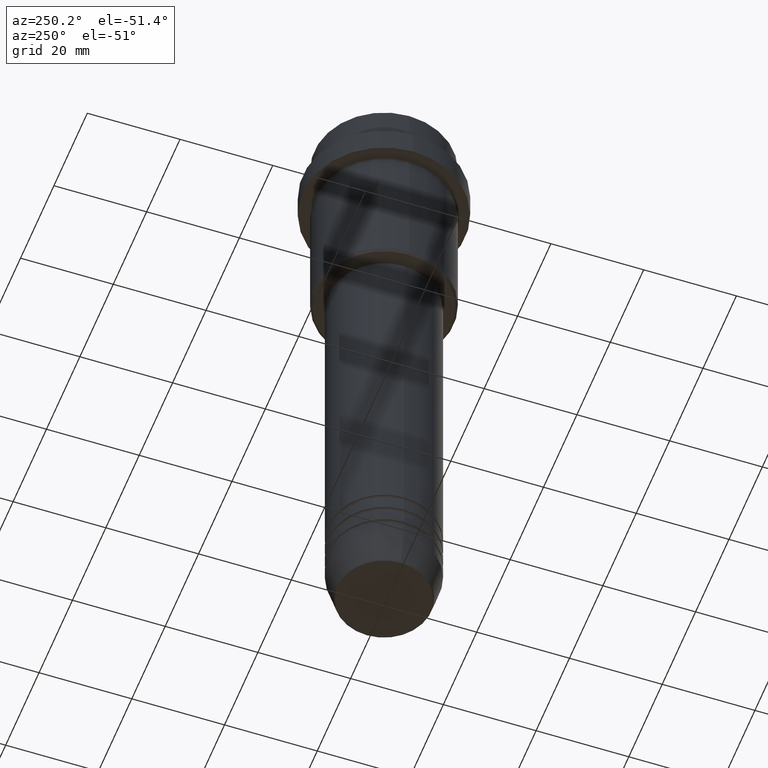
[diagram: clean part render]
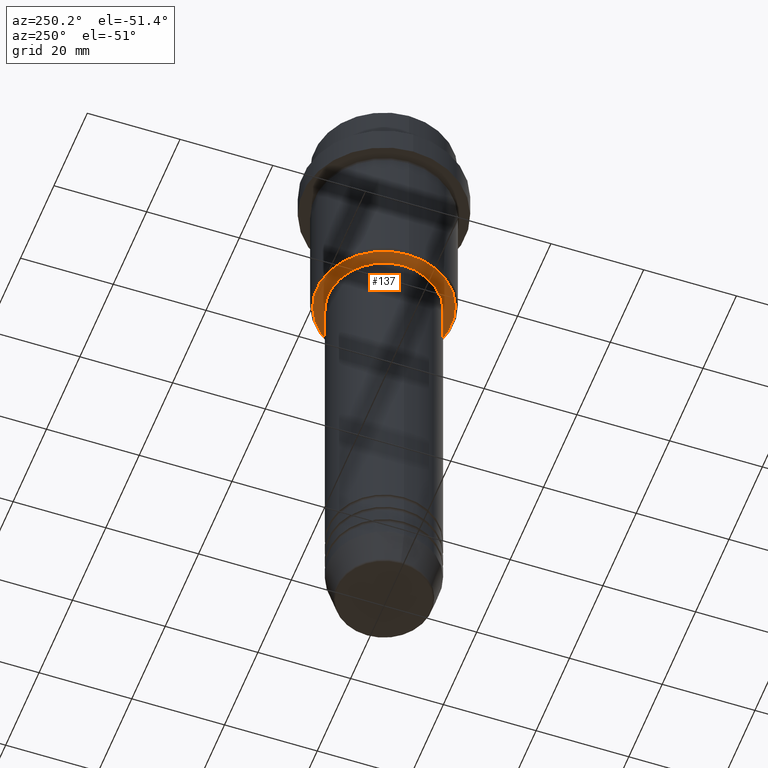
[diagram: same view with one face highlighted and labeled with its STEP entity id]
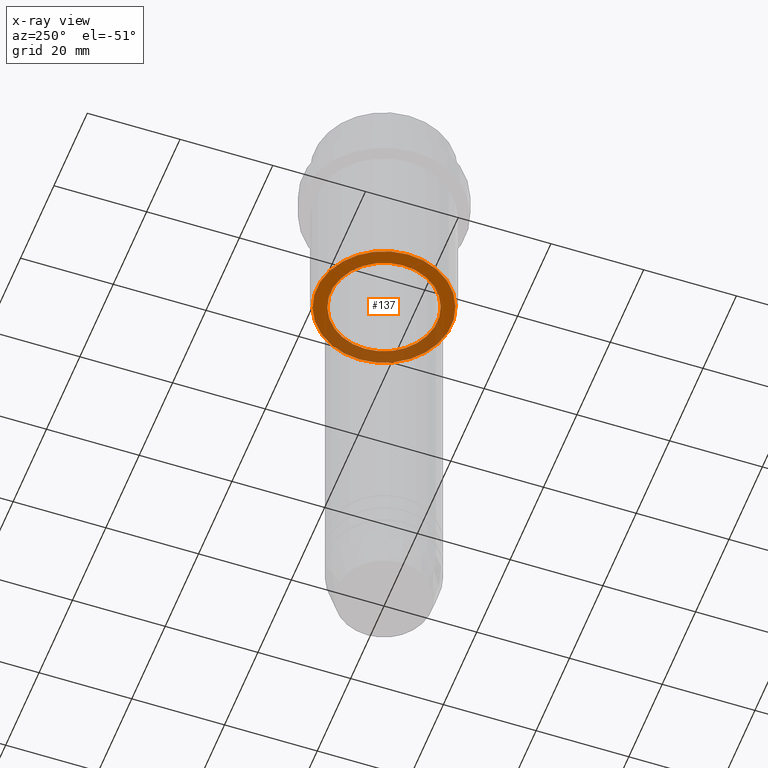
[diagram: x-ray of the same camera — body ghosted, the highlighted face saturated]
A machine part, auxiliary view. The second image highlights one B-rep face of the part: STEP entity #137.
The next image is the same camera in x-ray: the body ghosted, the highlighted face saturated — about 34% of this face is hidden behind the body in this view.
In plain terms, the highlighted planar face has unit normal (0, 0, -1).
Its self-contained STEP definition (entity closure, byte-faithful):
#81 = VERTEX_POINT ( 'NONE', #1331 ) ;
#106 = DIRECTION ( 'NONE',  ( 0.000000000000000000, 0.000000000000000000, -1.000000000000000000 ) ) ;
#137 = ADVANCED_FACE ( 'NONE', ( #377, #251 ), #1228, .T. ) ;
#175 = DIRECTION ( 'NONE',  ( -0.000000000000000000, -0.000000000000000000, 1.000000000000000000 ) ) ;
#251 = FACE_BOUND ( 'NONE', #1047, .T. ) ;
#286 = VERTEX_POINT ( 'NONE', #1058 ) ;
#307 = EDGE_LOOP ( 'NONE', ( #1251, #469 ) ) ;
#328 = DIRECTION ( 'NONE',  ( 0.000000000000000000, 0.000000000000000000, -1.000000000000000000 ) ) ;
#355 = VERTEX_POINT ( 'NONE', #1066 ) ;
#377 = FACE_OUTER_BOUND ( 'NONE', #307, .T. ) ;
#394 = CARTESIAN_POINT ( 'NONE',  ( 0.000000000000000000, 0.000000000000000000, -45.00000000000001421 ) ) ;
#429 = CARTESIAN_POINT ( 'NONE',  ( 0.000000000000000000, 0.000000000000000000, -45.00000000000001421 ) ) ;
#469 = ORIENTED_EDGE ( 'NONE', *, *, #820, .T. ) ;
#473 = EDGE_CURVE ( 'NONE', #81, #286, #592, .T. ) ;
#487 = ORIENTED_EDGE ( 'NONE', *, *, #1275, .T. ) ;
#501 = AXIS2_PLACEMENT_3D ( 'NONE', #783, #673, #1351 ) ;
#509 = AXIS2_PLACEMENT_3D ( 'NONE', #394, #826, #609 ) ;
#563 = CARTESIAN_POINT ( 'NONE',  ( -11.49999999999999467, 1.408343819019455781E-15, -45.00000000000001421 ) ) ;
#592 = CIRCLE ( 'NONE', #1330, 14.49999999999999645 ) ;
#609 = DIRECTION ( 'NONE',  ( 1.000000000000000000, 0.000000000000000000, 0.000000000000000000 ) ) ;
#612 = CARTESIAN_POINT ( 'NONE',  ( 0.000000000000000000, 0.000000000000000000, -45.00000000000001421 ) ) ;
#673 = DIRECTION ( 'NONE',  ( 0.000000000000000000, 0.000000000000000000, -1.000000000000000000 ) ) ;
#692 = EDGE_CURVE ( 'NONE', #1389, #355, #963, .T. ) ;
#748 = AXIS2_PLACEMENT_3D ( 'NONE', #429, #106, #857 ) ;
#753 = DIRECTION ( 'NONE',  ( -1.000000000000000000, 0.000000000000000000, 0.000000000000000000 ) ) ;
#783 = CARTESIAN_POINT ( 'NONE',  ( 0.000000000000000000, 15.00000000000000000, -45.00000000000001421 ) ) ;
#820 = EDGE_CURVE ( 'NONE', #286, #81, #1379, .T. ) ;
#826 = DIRECTION ( 'NONE',  ( -0.000000000000000000, -0.000000000000000000, 1.000000000000000000 ) ) ;
#828 = DIRECTION ( 'NONE',  ( 1.000000000000000000, 0.000000000000000000, 0.000000000000000000 ) ) ;
#857 = DIRECTION ( 'NONE',  ( -1.000000000000000000, 0.000000000000000000, 0.000000000000000000 ) ) ;
#876 = CARTESIAN_POINT ( 'NONE',  ( 0.000000000000000000, 0.000000000000000000, -45.00000000000001421 ) ) ;
#963 = CIRCLE ( 'NONE', #1199, 11.49999999999999467 ) ;
#1047 = EDGE_LOOP ( 'NONE', ( #487, #1339 ) ) ;
#1058 = CARTESIAN_POINT ( 'NONE',  ( -14.49999999999999645, 1.806354028742345802E-15, -45.00000000000001421 ) ) ;
#1066 = CARTESIAN_POINT ( 'NONE',  ( 11.49999999999999467, 0.000000000000000000, -45.00000000000001421 ) ) ;
#1199 = AXIS2_PLACEMENT_3D ( 'NONE', #612, #175, #828 ) ;
#1228 = PLANE ( 'NONE',  #501 ) ;
#1251 = ORIENTED_EDGE ( 'NONE', *, *, #473, .T. ) ;
#1275 = EDGE_CURVE ( 'NONE', #355, #1389, #1290, .T. ) ;
#1290 = CIRCLE ( 'NONE', #509, 11.49999999999999467 ) ;
#1330 = AXIS2_PLACEMENT_3D ( 'NONE', #876, #328, #753 ) ;
#1331 = CARTESIAN_POINT ( 'NONE',  ( 14.49999999999999645, 0.000000000000000000, -45.00000000000001421 ) ) ;
#1339 = ORIENTED_EDGE ( 'NONE', *, *, #692, .T. ) ;
#1351 = DIRECTION ( 'NONE',  ( -1.000000000000000000, 0.000000000000000000, -0.000000000000000000 ) ) ;
#1379 = CIRCLE ( 'NONE', #748, 14.49999999999999645 ) ;
#1389 = VERTEX_POINT ( 'NONE', #563 ) ;